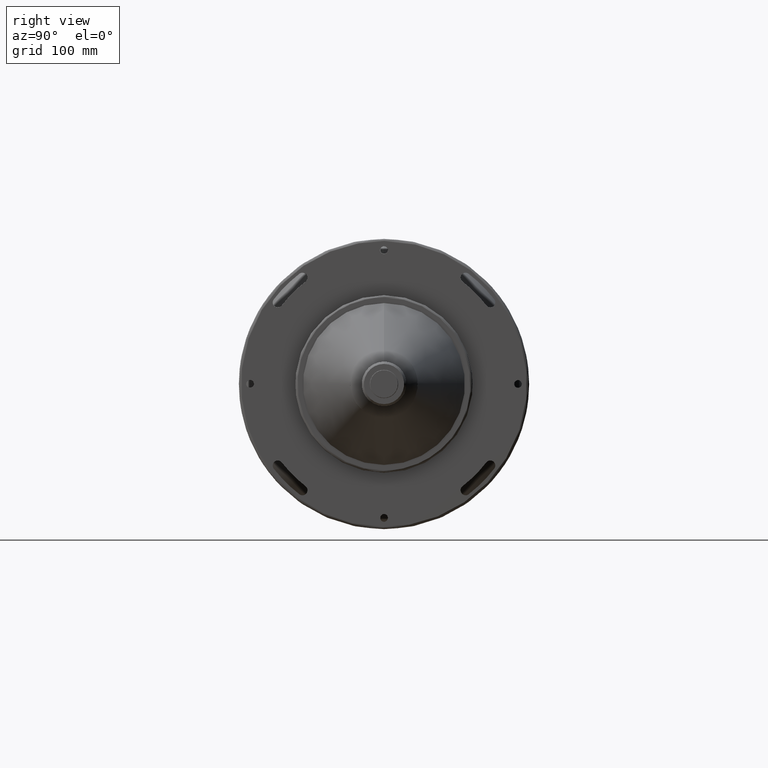
[diagram: clean part render]
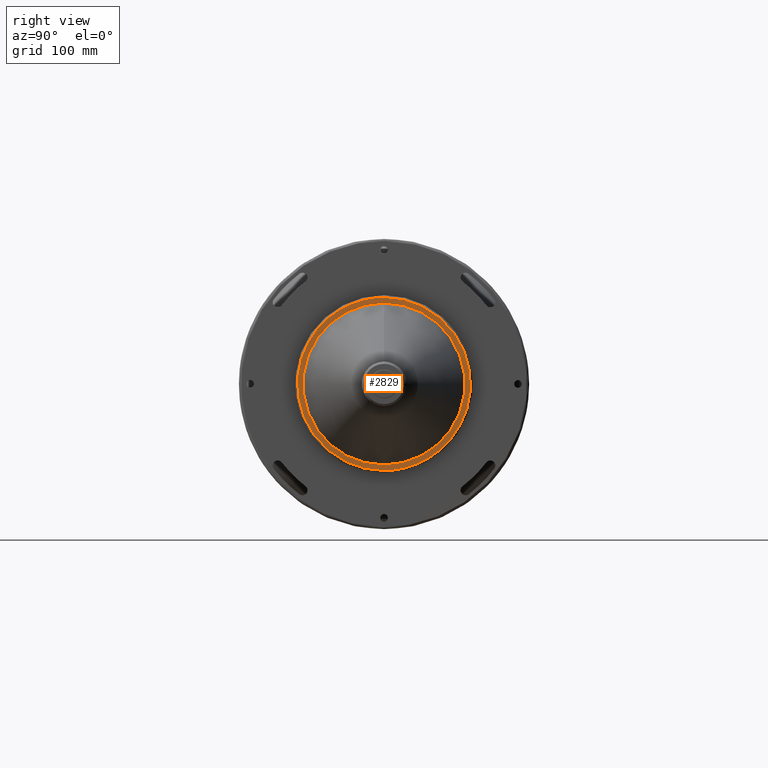
[diagram: same view with one face highlighted and labeled with its STEP entity id]
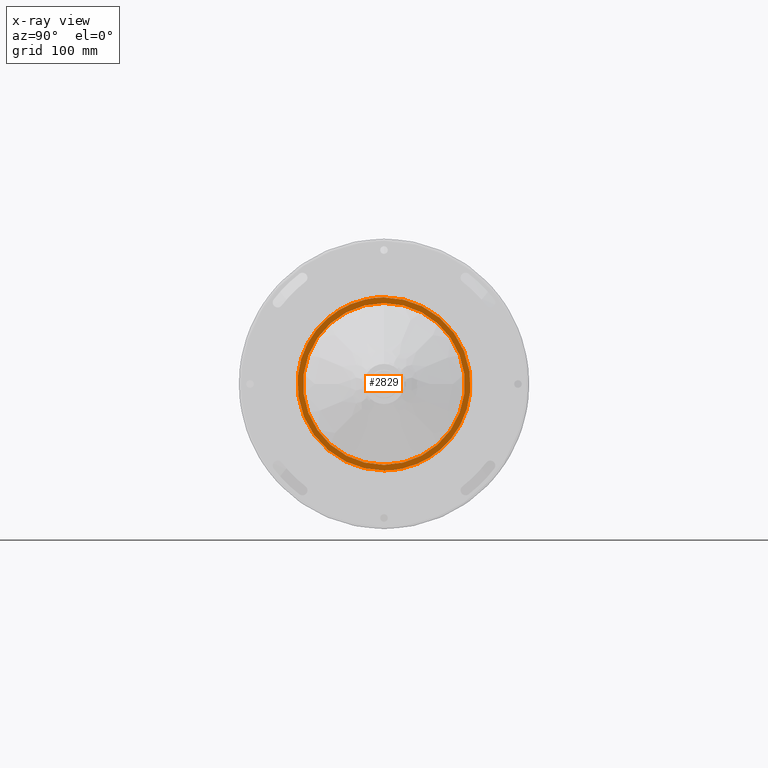
[diagram: x-ray of the same camera — body ghosted, the highlighted face saturated]
A machine part, right view. The second image highlights one B-rep face of the part: STEP entity #2829.
The next image is the same camera in x-ray: the body ghosted, the highlighted face saturated — about 0% of this face is hidden behind the body in this view.
In plain terms, the highlighted planar face has unit normal (-1, 0, 0).
Its self-contained STEP definition (entity closure, byte-faithful):
#28 = CARTESIAN_POINT ( 'NONE',  ( 17.15000000019109500, 0.0000000000000000000, -77.49999998536692700 ) ) ;
#67 = CIRCLE ( 'NONE', #287, 72.50000000000000000 ) ;
#85 = ORIENTED_EDGE ( 'NONE', *, *, #466, .F. ) ;
#287 = AXIS2_PLACEMENT_3D ( 'NONE', #648, #1181, #2439 ) ;
#358 = CARTESIAN_POINT ( 'NONE',  ( 17.15000000019109500, 0.0000000000000000000, 77.49999998536692700 ) ) ;
#452 = CARTESIAN_POINT ( 'NONE',  ( 17.15000000019109500, 0.0000000000000000000, 77.49999998536692700 ) ) ;
#466 = EDGE_CURVE ( 'NONE', #2637, #2409, #1807, .T. ) ;
#510 = CARTESIAN_POINT ( 'NONE',  ( 17.15000000019109500, 0.0000000000000000000, 77.49999998536692700 ) ) ;
#541 = CARTESIAN_POINT ( 'NONE',  ( 17.15000000000000200, -78.43000000000000700, -78.43000000000000700 ) ) ;
#647 = AXIS2_PLACEMENT_3D ( 'NONE', #541, #2835, #813 ) ;
#648 = CARTESIAN_POINT ( 'NONE',  ( 17.14999999999999900, 0.0000000000000000000, 0.0000000000000000000 ) ) ;
#813 = DIRECTION ( 'NONE',  ( 0.0000000000000000000, 0.0000000000000000000, 1.000000000000000000 ) ) ;
#974 = EDGE_CURVE ( 'NONE', #3017, #1365, #1033, .T. ) ;
#994 = EDGE_LOOP ( 'NONE', ( #85, #2155 ) ) ;
#1020 = DIRECTION ( 'NONE',  ( 0.0000000000000000000, 0.0000000000000000000, 1.000000000000000000 ) ) ;
#1033 = CIRCLE ( 'NONE', #3126, 72.50000000000000000 ) ;
#1053 = FACE_OUTER_BOUND ( 'NONE', #994, .T. ) ;
#1181 = DIRECTION ( 'NONE',  ( 1.000000000000000000, -0.0000000000000000000, -0.0000000000000000000 ) ) ;
#1274 = EDGE_CURVE ( 'NONE', #1365, #3017, #67, .T. ) ;
#1303 = DIRECTION ( 'NONE',  ( 1.000000000000000000, -0.0000000000000000000, -0.0000000000000000000 ) ) ;
#1365 = VERTEX_POINT ( 'NONE', #1524 ) ;
#1388 = EDGE_LOOP ( 'NONE', ( #2740, #3111 ) ) ;
#1395 = CARTESIAN_POINT ( 'NONE',  ( 17.14999999999999900, 0.0000000000000000000, 72.50000000000000000 ) ) ;
#1396 = CARTESIAN_POINT ( 'NONE',  ( 17.15000000031848500, -155.0000000018774800, -77.50000000129861600 ) ) ;
#1484 = CARTESIAN_POINT ( 'NONE',  ( 17.15000000019109500, 0.0000000000000000000, -77.49999998536692700 ) ) ;
#1520 =( BOUNDED_CURVE ( )  B_SPLINE_CURVE ( 3, ( #2919, #1396, #2157, #358 ),
 .UNSPECIFIED., .F., .F. ) 
 B_SPLINE_CURVE_WITH_KNOTS ( ( 4, 4 ),
 ( 0.0000000000000000000, 1.000000000000000000 ),
 .UNSPECIFIED. ) 
 CURVE ( )  GEOMETRIC_REPRESENTATION_ITEM ( )  RATIONAL_B_SPLINE_CURVE ( ( 0.9565783021300895400, 0.3188594340433629800, 0.3188594340433629800, 0.9565783021300895400 ) ) 
 REPRESENTATION_ITEM ( '' )  );
#1524 = CARTESIAN_POINT ( 'NONE',  ( 17.14999999999999900, 8.878689293818309300E-015, -72.50000000000000000 ) ) ;
#1532 = FACE_BOUND ( 'NONE', #1388, .T. ) ;
#1807 =( BOUNDED_CURVE ( )  B_SPLINE_CURVE ( 3, ( #510, #1811, #2589, #28 ),
 .UNSPECIFIED., .F., .T. ) 
 B_SPLINE_CURVE_WITH_KNOTS ( ( 4, 4 ),
 ( 0.0000000000000000000, 1.000000000000000000 ),
 .UNSPECIFIED. ) 
 CURVE ( )  GEOMETRIC_REPRESENTATION_ITEM ( )  RATIONAL_B_SPLINE_CURVE ( ( 0.9565783021300909800, 0.3188594340433634200, 0.3188594340433634200, 0.9565783021300909800 ) ) 
 REPRESENTATION_ITEM ( '' )  );
#1811 = CARTESIAN_POINT ( 'NONE',  ( 17.15000000031848500, 155.0000000018774500, 77.50000000129860200 ) ) ;
#1888 = EDGE_CURVE ( 'NONE', #2409, #2637, #1520, .T. ) ;
#2068 = PLANE ( 'NONE',  #647 ) ;
#2155 = ORIENTED_EDGE ( 'NONE', *, *, #1888, .F. ) ;
#2157 = CARTESIAN_POINT ( 'NONE',  ( 17.15000000031848500, -155.0000000018774800, 77.50000000129861600 ) ) ;
#2409 = VERTEX_POINT ( 'NONE', #1484 ) ;
#2439 = DIRECTION ( 'NONE',  ( 0.0000000000000000000, 0.0000000000000000000, 1.000000000000000000 ) ) ;
#2544 = CARTESIAN_POINT ( 'NONE',  ( 17.14999999999999900, 0.0000000000000000000, 0.0000000000000000000 ) ) ;
#2589 = CARTESIAN_POINT ( 'NONE',  ( 17.15000000031848500, 155.0000000018774500, -77.50000000129860200 ) ) ;
#2637 = VERTEX_POINT ( 'NONE', #452 ) ;
#2740 = ORIENTED_EDGE ( 'NONE', *, *, #974, .F. ) ;
#2829 = ADVANCED_FACE ( 'NONE', ( #1532, #1053 ), #2068, .F. ) ;
#2835 = DIRECTION ( 'NONE',  ( -1.000000000000000000, 0.0000000000000000000, 0.0000000000000000000 ) ) ;
#2919 = CARTESIAN_POINT ( 'NONE',  ( 17.15000000019109500, 0.0000000000000000000, -77.49999998536692700 ) ) ;
#3017 = VERTEX_POINT ( 'NONE', #1395 ) ;
#3111 = ORIENTED_EDGE ( 'NONE', *, *, #1274, .F. ) ;
#3126 = AXIS2_PLACEMENT_3D ( 'NONE', #2544, #1303, #1020 ) ;